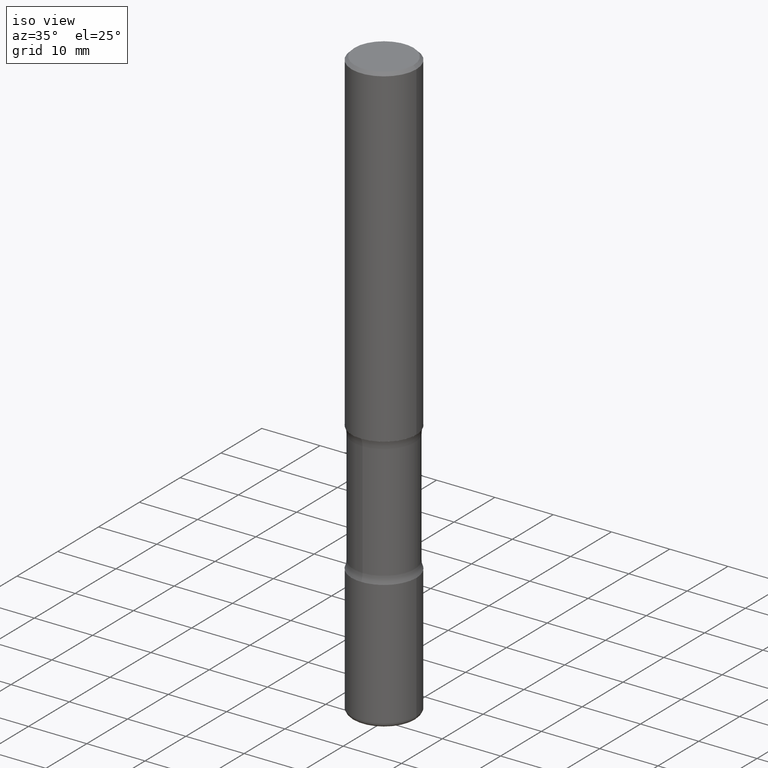
[diagram: clean part render]
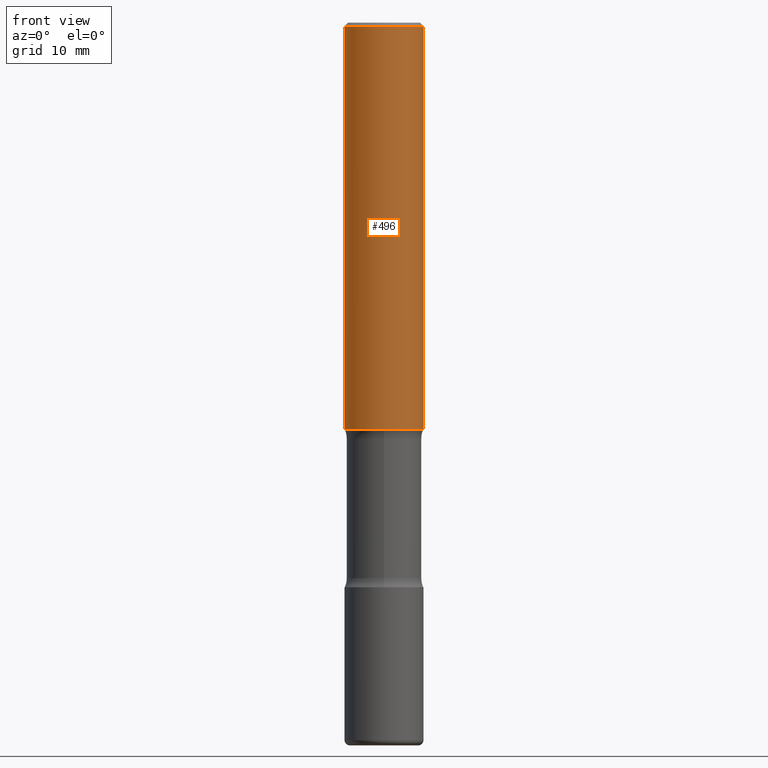
[diagram: tour spotlight — one face highlighted and labeled with its STEP entity id]
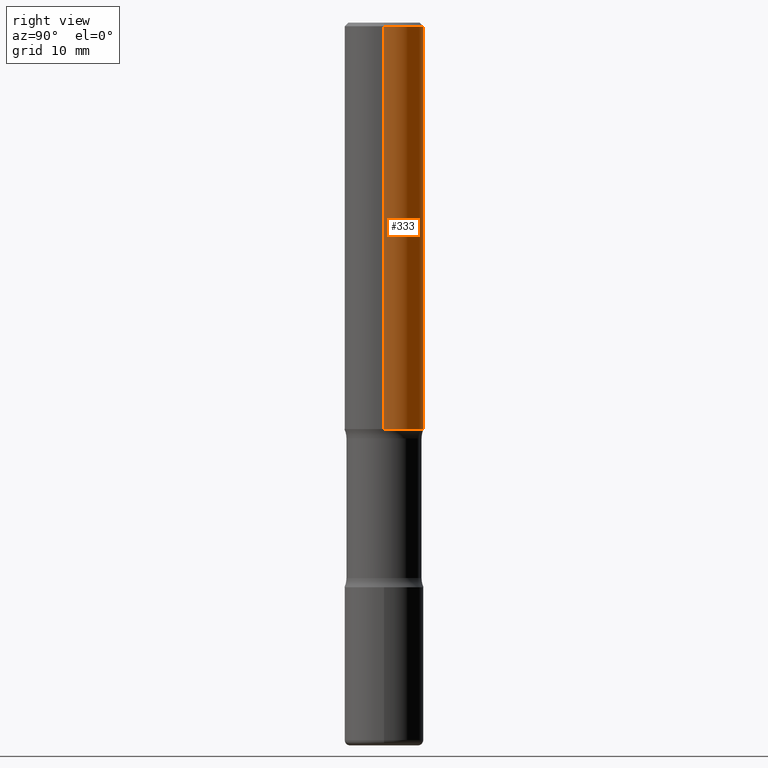
[diagram: tour spotlight — one face highlighted and labeled with its STEP entity id]
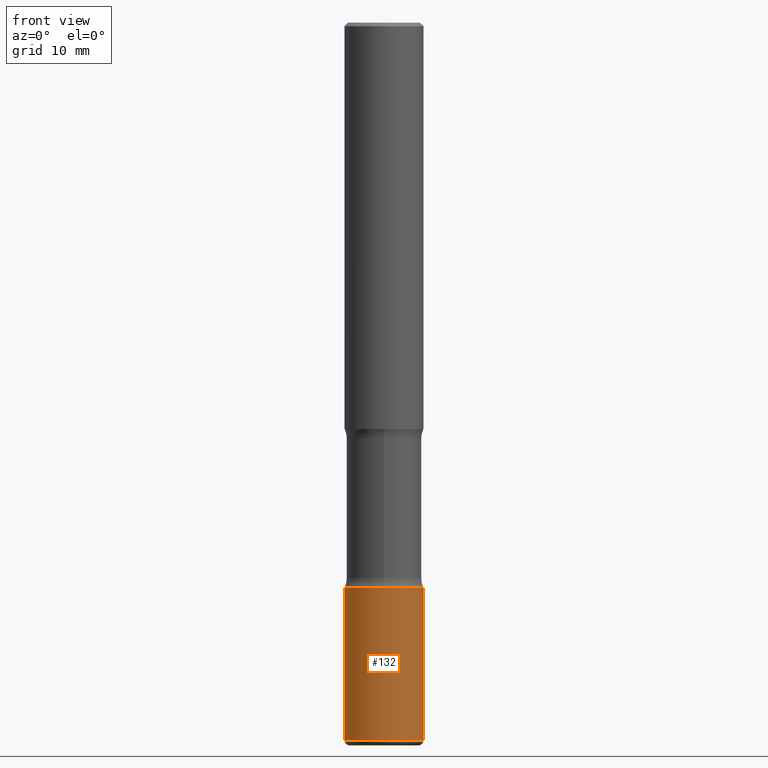
[diagram: tour spotlight — one face highlighted and labeled with its STEP entity id]
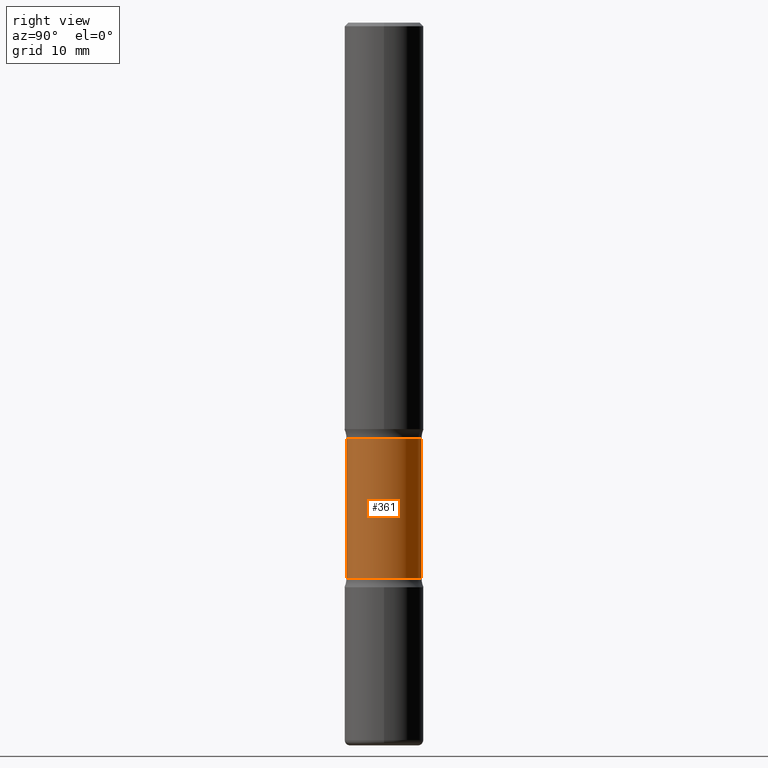
[diagram: tour spotlight — one face highlighted and labeled with its STEP entity id]
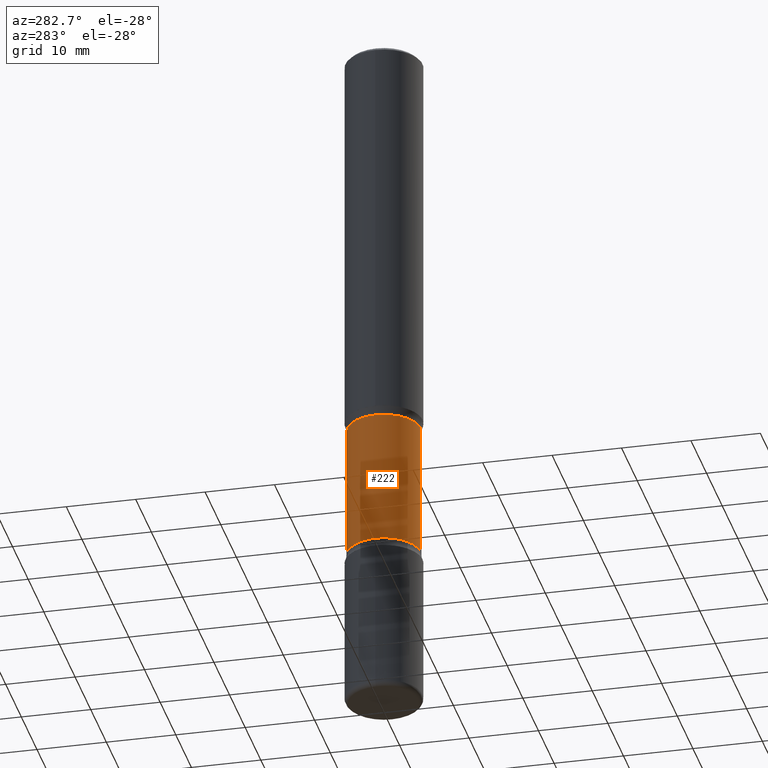
[diagram: tour spotlight — one face highlighted and labeled with its STEP entity id]
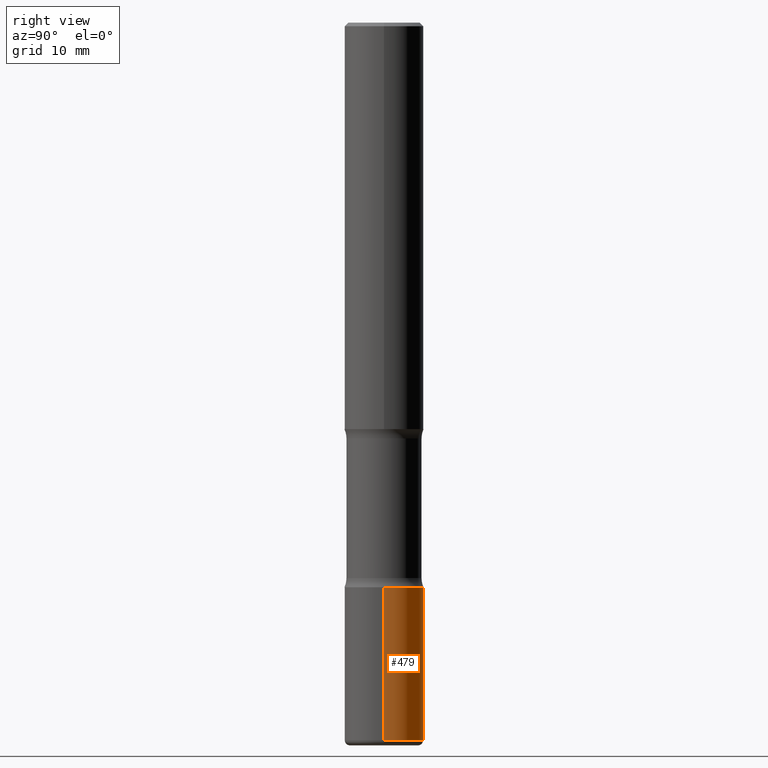
[diagram: tour spotlight — one face highlighted and labeled with its STEP entity id]
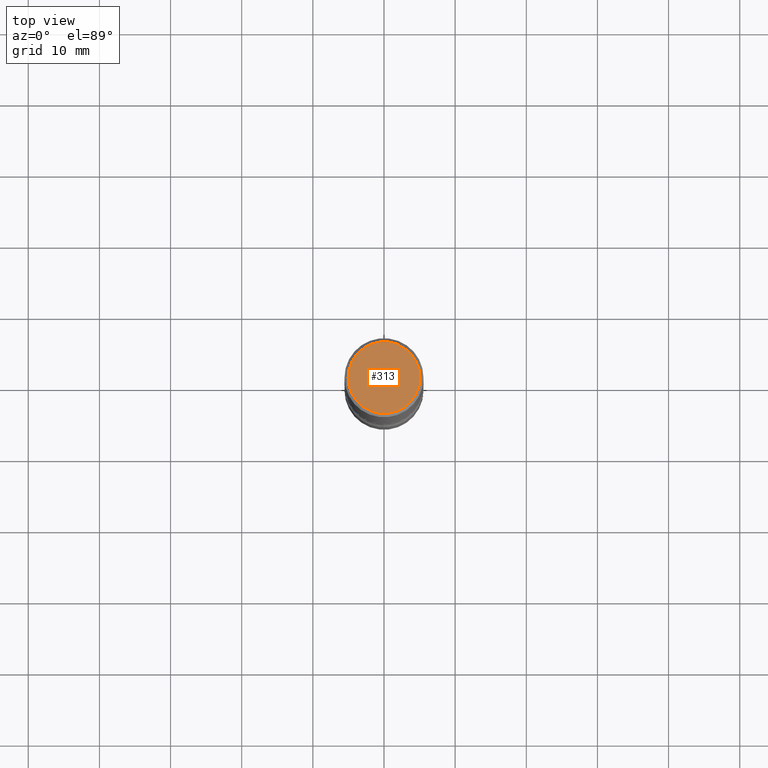
[diagram: tour spotlight — one face highlighted and labeled with its STEP entity id]
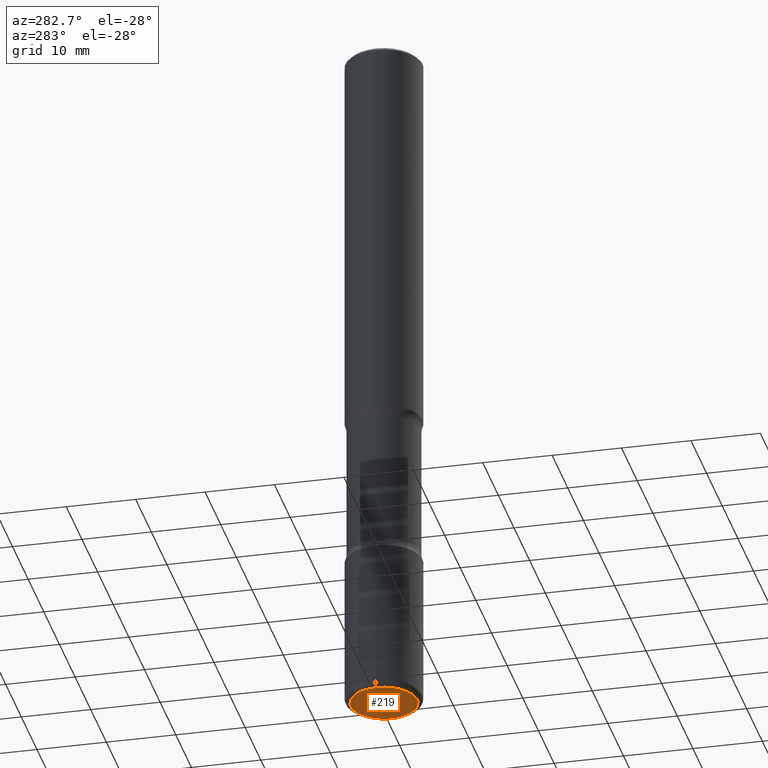
[diagram: tour spotlight — one face highlighted and labeled with its STEP entity id]
A machine part: a face-by-face anatomy tour. The part has 20 B-rep faces; the first image is the clean iso view, then the 8 largest visible faces are spotlighted one at a time (largest first), each with its STEP entity span.

Face 1 — front view, entity #496. In plain terms, the highlighted cylindrical surface (partial cylindrical patch) has radius 5.5563 mm, axis along (-0, 0, 1).
Definition (entity closure, byte-faithful):
#3 = CARTESIAN_POINT ( 'NONE',  ( 0.000000000000000000, 0.000000000000000000, 0.000000000000000000 ) ) ;
#12 = AXIS2_PLACEMENT_3D ( 'NONE', #475, #530, #78 ) ;
#27 = CIRCLE ( 'NONE', #12, 0.2187500000000001388 ) ;
#31 = ORIENTED_EDGE ( 'NONE', *, *, #355, .F. ) ;
#49 = VECTOR ( 'NONE', #334, 39.37007874015748143 ) ;
#69 = DIRECTION ( 'NONE',  ( -2.445468806185136877E-29, 3.491481338843145188E-15, 1.000000000000000000 ) ) ;
#74 = CARTESIAN_POINT ( 'NONE',  ( -0.2187500000000001388, -2.408519085111747378E-15, -2.249999999999999556 ) ) ;
#78 = DIRECTION ( 'NONE',  ( 1.000000000000000000, -6.982962677686263555E-15, 0.000000000000000000 ) ) ;
#90 = AXIS2_PLACEMENT_3D ( 'NONE', #3, #171, #344 ) ;
#107 = CIRCLE ( 'NONE', #117, 0.2187499999999998890 ) ;
#115 = CARTESIAN_POINT ( 'NONE',  ( 0.2187500000000000278, -1.527523085743871040E-15, 1.066663669705361025E-29 ) ) ;
#117 = AXIS2_PLACEMENT_3D ( 'NONE', #510, #506, #375 ) ;
#125 = EDGE_CURVE ( 'NONE', #411, #446, #27, .T. ) ;
#133 = CARTESIAN_POINT ( 'NONE',  ( -0.2187499999999998890, 1.457693458967006953E-15, -0.02000000000000006981 ) ) ;
#135 = VERTEX_POINT ( 'NONE', #133 ) ;
#158 = ORIENTED_EDGE ( 'NONE', *, *, #198, .F. ) ;
#169 = EDGE_CURVE ( 'NONE', #446, #406, #435, .T. ) ;
#171 = DIRECTION ( 'NONE',  ( -2.445468806185136597E-29, 3.491481338843145583E-15, 1.000000000000000000 ) ) ;
#198 = EDGE_CURVE ( 'NONE', #411, #135, #292, .T. ) ;
#206 = EDGE_LOOP ( 'NONE', ( #158, #370, #459, #31 ) ) ;
#220 = FACE_OUTER_BOUND ( 'NONE', #206, .T. ) ;
#243 = VECTOR ( 'NONE', #69, 39.37007874015748143 ) ;
#292 = LINE ( 'NONE', #460, #243 ) ;
#302 = CARTESIAN_POINT ( 'NONE',  ( 0.2187500000000001388, -9.383356098140946925E-15, -2.249999999999999556 ) ) ;
#334 = DIRECTION ( 'NONE',  ( -2.445468806185136877E-29, 3.491481338843145188E-15, 1.000000000000000000 ) ) ;
#344 = DIRECTION ( 'NONE',  ( 1.000000000000000000, -6.982962677686266711E-15, 4.876176775795935232E-29 ) ) ;
#355 = EDGE_CURVE ( 'NONE', #135, #406, #107, .T. ) ;
#370 = ORIENTED_EDGE ( 'NONE', *, *, #125, .T. ) ;
#375 = DIRECTION ( 'NONE',  ( 1.000000000000000000, -6.982962677686266711E-15, 0.000000000000000000 ) ) ;
#388 = CYLINDRICAL_SURFACE ( 'NONE', #90, 0.2187500000000000278 ) ;
#406 = VERTEX_POINT ( 'NONE', #410 ) ;
#410 = CARTESIAN_POINT ( 'NONE',  ( 0.2187499999999998890, -1.570563563789384841E-15, -0.02000000000000006981 ) ) ;
#411 = VERTEX_POINT ( 'NONE', #74 ) ;
#435 = LINE ( 'NONE', #115, #49 ) ;
#446 = VERTEX_POINT ( 'NONE', #302 ) ;
#459 = ORIENTED_EDGE ( 'NONE', *, *, #169, .T. ) ;
#460 = CARTESIAN_POINT ( 'NONE',  ( -0.2187500000000000278, 1.554312234475219354E-15, -1.076017050993260762E-29 ) ) ;
#475 = CARTESIAN_POINT ( 'NONE',  ( 5.502304813916556222E-29, -7.855833012397075293E-15, -2.249999999999999556 ) ) ;
#496 = ADVANCED_FACE ( 'NONE', ( #220 ), #388, .T. ) ;
#506 = DIRECTION ( 'NONE',  ( -2.445468806185136597E-29, 3.491481338843145583E-15, 1.000000000000000000 ) ) ;
#510 = CARTESIAN_POINT ( 'NONE',  ( 4.890937612370289799E-31, -6.982962677686315028E-17, -0.02000000000000006981 ) ) ;
#530 = DIRECTION ( 'NONE',  ( -2.445468806185136597E-29, 3.491481338843145583E-15, 1.000000000000000000 ) ) ;

Face 2 — right view, entity #333. In plain terms, the highlighted cylindrical surface (partial cylindrical patch) has radius 5.5563 mm, axis along (-0, 0, 1).
Definition (entity closure, byte-faithful):
#6 = DIRECTION ( 'NONE',  ( 1.000000000000000000, -6.982962677686266711E-15, 0.000000000000000000 ) ) ;
#23 = CARTESIAN_POINT ( 'NONE',  ( 5.502304813916556222E-29, -7.855833012397075293E-15, -2.249999999999999556 ) ) ;
#24 = ORIENTED_EDGE ( 'NONE', *, *, #198, .T. ) ;
#49 = VECTOR ( 'NONE', #334, 39.37007874015748143 ) ;
#56 = EDGE_LOOP ( 'NONE', ( #378, #24, #162, #376 ) ) ;
#69 = DIRECTION ( 'NONE',  ( -2.445468806185136877E-29, 3.491481338843145188E-15, 1.000000000000000000 ) ) ;
#74 = CARTESIAN_POINT ( 'NONE',  ( -0.2187500000000001388, -2.408519085111747378E-15, -2.249999999999999556 ) ) ;
#106 = DIRECTION ( 'NONE',  ( -2.445468806185136597E-29, 3.491481338843145583E-15, 1.000000000000000000 ) ) ;
#115 = CARTESIAN_POINT ( 'NONE',  ( 0.2187500000000000278, -1.527523085743871040E-15, 1.066663669705361025E-29 ) ) ;
#128 = CIRCLE ( 'NONE', #224, 0.2187500000000001388 ) ;
#133 = CARTESIAN_POINT ( 'NONE',  ( -0.2187499999999998890, 1.457693458967006953E-15, -0.02000000000000006981 ) ) ;
#135 = VERTEX_POINT ( 'NONE', #133 ) ;
#149 = FACE_OUTER_BOUND ( 'NONE', #56, .T. ) ;
#153 = CARTESIAN_POINT ( 'NONE',  ( 0.000000000000000000, 0.000000000000000000, 0.000000000000000000 ) ) ;
#162 = ORIENTED_EDGE ( 'NONE', *, *, #516, .F. ) ;
#169 = EDGE_CURVE ( 'NONE', #446, #406, #435, .T. ) ;
#174 = CARTESIAN_POINT ( 'NONE',  ( 4.890937612370289799E-31, -6.982962677686315028E-17, -0.02000000000000006981 ) ) ;
#198 = EDGE_CURVE ( 'NONE', #411, #135, #292, .T. ) ;
#202 = DIRECTION ( 'NONE',  ( -2.445468806185136597E-29, 3.491481338843145583E-15, 1.000000000000000000 ) ) ;
#224 = AXIS2_PLACEMENT_3D ( 'NONE', #23, #106, #285 ) ;
#243 = VECTOR ( 'NONE', #69, 39.37007874015748143 ) ;
#266 = AXIS2_PLACEMENT_3D ( 'NONE', #153, #202, #499 ) ;
#285 = DIRECTION ( 'NONE',  ( 1.000000000000000000, -6.982962677686263555E-15, 0.000000000000000000 ) ) ;
#292 = LINE ( 'NONE', #460, #243 ) ;
#302 = CARTESIAN_POINT ( 'NONE',  ( 0.2187500000000001388, -9.383356098140946925E-15, -2.249999999999999556 ) ) ;
#326 = AXIS2_PLACEMENT_3D ( 'NONE', #174, #391, #6 ) ;
#331 = CYLINDRICAL_SURFACE ( 'NONE', #266, 0.2187500000000000278 ) ;
#333 = ADVANCED_FACE ( 'NONE', ( #149 ), #331, .T. ) ;
#334 = DIRECTION ( 'NONE',  ( -2.445468806185136877E-29, 3.491481338843145188E-15, 1.000000000000000000 ) ) ;
#346 = EDGE_CURVE ( 'NONE', #446, #411, #128, .T. ) ;
#358 = CIRCLE ( 'NONE', #326, 0.2187499999999998890 ) ;
#376 = ORIENTED_EDGE ( 'NONE', *, *, #169, .F. ) ;
#378 = ORIENTED_EDGE ( 'NONE', *, *, #346, .T. ) ;
#391 = DIRECTION ( 'NONE',  ( -2.445468806185136597E-29, 3.491481338843145583E-15, 1.000000000000000000 ) ) ;
#406 = VERTEX_POINT ( 'NONE', #410 ) ;
#410 = CARTESIAN_POINT ( 'NONE',  ( 0.2187499999999998890, -1.570563563789384841E-15, -0.02000000000000006981 ) ) ;
#411 = VERTEX_POINT ( 'NONE', #74 ) ;
#435 = LINE ( 'NONE', #115, #49 ) ;
#446 = VERTEX_POINT ( 'NONE', #302 ) ;
#460 = CARTESIAN_POINT ( 'NONE',  ( -0.2187500000000000278, 1.554312234475219354E-15, -1.076017050993260762E-29 ) ) ;
#499 = DIRECTION ( 'NONE',  ( 1.000000000000000000, -6.982962677686266711E-15, 4.876176775795935232E-29 ) ) ;
#516 = EDGE_CURVE ( 'NONE', #406, #135, #358, .T. ) ;

Face 3 — front view, entity #132. In plain terms, the highlighted cylindrical surface (partial cylindrical patch) has radius 5.5563 mm, axis along (-0, 0, 1).
Definition (entity closure, byte-faithful):
#2 = CARTESIAN_POINT ( 'NONE',  ( 0.2187500000000001943, -1.243840226962869808E-14, -3.124999999999999112 ) ) ;
#13 = EDGE_CURVE ( 'NONE', #329, #360, #195, .T. ) ;
#30 = CARTESIAN_POINT ( 'NONE',  ( 0.2187500000000003608, -1.538870400095116217E-14, -3.970000000000000195 ) ) ;
#39 = CYLINDRICAL_SURFACE ( 'NONE', #152, 0.2187500000000002220 ) ;
#46 = CARTESIAN_POINT ( 'NONE',  ( -0.2187500000000001943, -1.083171781507083697E-14, -3.124999999999999112 ) ) ;
#50 = VECTOR ( 'NONE', #424, 39.37007874015748143 ) ;
#60 = VERTEX_POINT ( 'NONE', #2 ) ;
#71 = ORIENTED_EDGE ( 'NONE', *, *, #13, .T. ) ;
#82 = FACE_OUTER_BOUND ( 'NONE', #189, .T. ) ;
#84 = DIRECTION ( 'NONE',  ( 1.000000000000000000, -6.982962677686265133E-15, 0.000000000000000000 ) ) ;
#85 = LINE ( 'NONE', #558, #165 ) ;
#120 = ORIENTED_EDGE ( 'NONE', *, *, #277, .F. ) ;
#132 = ADVANCED_FACE ( 'NONE', ( #82 ), #39, .T. ) ;
#151 = CARTESIAN_POINT ( 'NONE',  ( 7.642090019328550744E-29, -1.091087918388482645E-14, -3.124999999999999112 ) ) ;
#152 = AXIS2_PLACEMENT_3D ( 'NONE', #259, #254, #437 ) ;
#164 = AXIS2_PLACEMENT_3D ( 'NONE', #513, #387, #84 ) ;
#165 = VECTOR ( 'NONE', #296, 39.37007874015748143 ) ;
#187 = CIRCLE ( 'NONE', #314, 0.2187500000000001943 ) ;
#189 = EDGE_LOOP ( 'NONE', ( #367, #71, #199, #120 ) ) ;
#195 = CIRCLE ( 'NONE', #164, 0.2187500000000002220 ) ;
#199 = ORIENTED_EDGE ( 'NONE', *, *, #400, .T. ) ;
#235 = LINE ( 'NONE', #244, #50 ) ;
#244 = CARTESIAN_POINT ( 'NONE',  ( 0.2187500000000002220, -1.527523085743872421E-15, 1.066663669705362006E-29 ) ) ;
#254 = DIRECTION ( 'NONE',  ( -2.445468806185136597E-29, 3.491481338843145583E-15, 1.000000000000000000 ) ) ;
#259 = CARTESIAN_POINT ( 'NONE',  ( 0.000000000000000000, 0.000000000000000000, 0.000000000000000000 ) ) ;
#277 = EDGE_CURVE ( 'NONE', #324, #60, #187, .T. ) ;
#296 = DIRECTION ( 'NONE',  ( -2.445468806185136877E-29, 3.491481338843145188E-15, 1.000000000000000000 ) ) ;
#314 = AXIS2_PLACEMENT_3D ( 'NONE', #151, #509, #377 ) ;
#324 = VERTEX_POINT ( 'NONE', #46 ) ;
#329 = VERTEX_POINT ( 'NONE', #396 ) ;
#360 = VERTEX_POINT ( 'NONE', #30 ) ;
#367 = ORIENTED_EDGE ( 'NONE', *, *, #508, .F. ) ;
#377 = DIRECTION ( 'NONE',  ( 1.000000000000000000, -6.982962677686265922E-15, 0.000000000000000000 ) ) ;
#387 = DIRECTION ( 'NONE',  ( -2.445468806185136597E-29, 3.491481338843145583E-15, 1.000000000000000000 ) ) ;
#396 = CARTESIAN_POINT ( 'NONE',  ( -0.2187500000000003608, -1.230686868073206507E-14, -3.970000000000000195 ) ) ;
#400 = EDGE_CURVE ( 'NONE', #360, #60, #235, .T. ) ;
#424 = DIRECTION ( 'NONE',  ( -2.445468806185136877E-29, 3.491481338843145188E-15, 1.000000000000000000 ) ) ;
#437 = DIRECTION ( 'NONE',  ( 1.000000000000000000, -6.982962677686266711E-15, 4.876176775795935793E-29 ) ) ;
#508 = EDGE_CURVE ( 'NONE', #329, #324, #85, .T. ) ;
#509 = DIRECTION ( 'NONE',  ( -2.445468806185136597E-29, 3.491481338843145583E-15, 1.000000000000000000 ) ) ;
#513 = CARTESIAN_POINT ( 'NONE',  ( 9.708511160554992872E-29, -1.386118091520728738E-14, -3.970000000000000195 ) ) ;
#558 = CARTESIAN_POINT ( 'NONE',  ( -0.2187500000000002220, 1.554312234475220734E-15, -1.076017050993261743E-29 ) ) ;

Face 4 — right view, entity #361. In plain terms, the highlighted cylindrical surface (partial cylindrical patch) has radius 5.2784 mm, axis along (0, -0, -1).
Definition (entity closure, byte-faithful):
#25 = CARTESIAN_POINT ( 'NONE',  ( 1.451146931456752440E-15, 0.2078124999999892975, -3.073865411962644068 ) ) ;
#33 = ORIENTED_EDGE ( 'NONE', *, *, #55, .F. ) ;
#42 = CARTESIAN_POINT ( 'NONE',  ( 1.451146931456775908E-15, 0.2078124999999861888, -4.000000000000000888 ) ) ;
#55 = EDGE_CURVE ( 'NONE', #332, #204, #438, .T. ) ;
#57 = EDGE_CURVE ( 'NONE', #204, #273, #556, .T. ) ;
#73 = CARTESIAN_POINT ( 'NONE',  ( -1.425697240161797519E-15, -0.2078125000000138334, -3.999999999999999556 ) ) ;
#81 = EDGE_CURVE ( 'NONE', #332, #544, #223, .T. ) ;
#83 = CARTESIAN_POINT ( 'NONE',  ( -1.463215588587155192E-15, -0.2078125000000081712, -2.301134588037354156 ) ) ;
#92 = ORIENTED_EDGE ( 'NONE', *, *, #280, .T. ) ;
#100 = FACE_OUTER_BOUND ( 'NONE', #281, .T. ) ;
#105 = AXIS2_PLACEMENT_3D ( 'NONE', #311, #126, #477 ) ;
#110 = CARTESIAN_POINT ( 'NONE',  ( 9.866784870866931853E-29, -1.384432990936266734E-14, -4.000000000000000000 ) ) ;
#126 = DIRECTION ( 'NONE',  ( 2.542508401758147997E-29, -3.352515114831814446E-15, -1.000000000000000000 ) ) ;
#154 = VECTOR ( 'NONE', #552, 39.37007874015748143 ) ;
#170 = DIRECTION ( 'NONE',  ( 2.542508401758147997E-29, -3.352515114831814446E-15, -1.000000000000000000 ) ) ;
#191 = ORIENTED_EDGE ( 'NONE', *, *, #57, .F. ) ;
#204 = VERTEX_POINT ( 'NONE', #25 ) ;
#205 = CARTESIAN_POINT ( 'NONE',  ( -1.463215588587134090E-15, -0.2078125000000107248, -3.073865411962643179 ) ) ;
#223 = CIRCLE ( 'NONE', #105, 0.2078125000000000389 ) ;
#265 = AXIS2_PLACEMENT_3D ( 'NONE', #348, #170, #307 ) ;
#273 = VERTEX_POINT ( 'NONE', #205 ) ;
#280 = EDGE_CURVE ( 'NONE', #544, #273, #379, .T. ) ;
#281 = EDGE_LOOP ( 'NONE', ( #465, #92, #191, #33 ) ) ;
#303 = DIRECTION ( 'NONE',  ( 2.542508401758147997E-29, -3.352515114831814446E-15, -1.000000000000000000 ) ) ;
#307 = DIRECTION ( 'NONE',  ( 6.982962677686265133E-15, 1.000000000000000000, -2.629146941270869802E-15 ) ) ;
#311 = CARTESIAN_POINT ( 'NONE',  ( 5.547405287495589114E-29, -8.148857937692923452E-15, -2.301134588037355044 ) ) ;
#332 = VERTEX_POINT ( 'NONE', #366 ) ;
#339 = AXIS2_PLACEMENT_3D ( 'NONE', #110, #453, #369 ) ;
#348 = CARTESIAN_POINT ( 'NONE',  ( 7.512079899623131265E-29, -1.073944970459889485E-14, -3.073865411962643623 ) ) ;
#361 = ADVANCED_FACE ( 'NONE', ( #100 ), #543, .T. ) ;
#366 = CARTESIAN_POINT ( 'NONE',  ( 1.451146931456732915E-15, 0.2078124999999918787, -2.301134588037355932 ) ) ;
#369 = DIRECTION ( 'NONE',  ( 6.982962677686265133E-15, 1.000000000000000000, -2.629146941270869802E-15 ) ) ;
#379 = LINE ( 'NONE', #73, #154 ) ;
#438 = LINE ( 'NONE', #42, #484 ) ;
#453 = DIRECTION ( 'NONE',  ( 2.542508401758147997E-29, -3.352515114831814446E-15, -1.000000000000000000 ) ) ;
#465 = ORIENTED_EDGE ( 'NONE', *, *, #81, .T. ) ;
#477 = DIRECTION ( 'NONE',  ( 6.982962677686265133E-15, 1.000000000000000000, -3.943720411906303717E-15 ) ) ;
#484 = VECTOR ( 'NONE', #303, 39.37007874015748143 ) ;
#543 = CYLINDRICAL_SURFACE ( 'NONE', #339, 0.2078125000000000111 ) ;
#544 = VERTEX_POINT ( 'NONE', #83 ) ;
#552 = DIRECTION ( 'NONE',  ( 2.542508401758147997E-29, -3.352515114831814446E-15, -1.000000000000000000 ) ) ;
#556 = CIRCLE ( 'NONE', #265, 0.2078125000000000111 ) ;

Face 5 — auxiliary view, entity #222. In plain terms, the highlighted cylindrical surface (partial cylindrical patch) has radius 5.2784 mm, axis along (0, -0, -1).
Definition (entity closure, byte-faithful):
#25 = CARTESIAN_POINT ( 'NONE',  ( 1.451146931456752440E-15, 0.2078124999999892975, -3.073865411962644068 ) ) ;
#32 = FACE_OUTER_BOUND ( 'NONE', #163, .T. ) ;
#38 = CYLINDRICAL_SURFACE ( 'NONE', #276, 0.2078125000000000111 ) ;
#42 = CARTESIAN_POINT ( 'NONE',  ( 1.451146931456775908E-15, 0.2078124999999861888, -4.000000000000000888 ) ) ;
#55 = EDGE_CURVE ( 'NONE', #332, #204, #438, .T. ) ;
#66 = ORIENTED_EDGE ( 'NONE', *, *, #55, .T. ) ;
#73 = CARTESIAN_POINT ( 'NONE',  ( -1.425697240161797519E-15, -0.2078125000000138334, -3.999999999999999556 ) ) ;
#76 = CARTESIAN_POINT ( 'NONE',  ( 5.547405287495589114E-29, -8.148857937692923452E-15, -2.301134588037355044 ) ) ;
#83 = CARTESIAN_POINT ( 'NONE',  ( -1.463215588587155192E-15, -0.2078125000000081712, -2.301134588037354156 ) ) ;
#154 = VECTOR ( 'NONE', #552, 39.37007874015748143 ) ;
#163 = EDGE_LOOP ( 'NONE', ( #362, #408, #66, #535 ) ) ;
#167 = DIRECTION ( 'NONE',  ( 6.982962677686265133E-15, 1.000000000000000000, -3.943720411906303717E-15 ) ) ;
#177 = AXIS2_PLACEMENT_3D ( 'NONE', #212, #347, #525 ) ;
#203 = CIRCLE ( 'NONE', #493, 0.2078125000000000389 ) ;
#204 = VERTEX_POINT ( 'NONE', #25 ) ;
#205 = CARTESIAN_POINT ( 'NONE',  ( -1.463215588587134090E-15, -0.2078125000000107248, -3.073865411962643179 ) ) ;
#212 = CARTESIAN_POINT ( 'NONE',  ( 7.512079899623131265E-29, -1.073944970459889485E-14, -3.073865411962643623 ) ) ;
#222 = ADVANCED_FACE ( 'NONE', ( #32 ), #38, .T. ) ;
#273 = VERTEX_POINT ( 'NONE', #205 ) ;
#276 = AXIS2_PLACEMENT_3D ( 'NONE', #368, #519, #463 ) ;
#280 = EDGE_CURVE ( 'NONE', #544, #273, #379, .T. ) ;
#303 = DIRECTION ( 'NONE',  ( 2.542508401758147997E-29, -3.352515114831814446E-15, -1.000000000000000000 ) ) ;
#320 = CIRCLE ( 'NONE', #177, 0.2078125000000000111 ) ;
#332 = VERTEX_POINT ( 'NONE', #366 ) ;
#347 = DIRECTION ( 'NONE',  ( 2.542508401758147997E-29, -3.352515114831814446E-15, -1.000000000000000000 ) ) ;
#362 = ORIENTED_EDGE ( 'NONE', *, *, #280, .F. ) ;
#366 = CARTESIAN_POINT ( 'NONE',  ( 1.451146931456732915E-15, 0.2078124999999918787, -2.301134588037355932 ) ) ;
#368 = CARTESIAN_POINT ( 'NONE',  ( 9.866784870866931853E-29, -1.384432990936266734E-14, -4.000000000000000000 ) ) ;
#379 = LINE ( 'NONE', #73, #154 ) ;
#408 = ORIENTED_EDGE ( 'NONE', *, *, #448, .T. ) ;
#423 = EDGE_CURVE ( 'NONE', #273, #204, #320, .T. ) ;
#438 = LINE ( 'NONE', #42, #484 ) ;
#448 = EDGE_CURVE ( 'NONE', #544, #332, #203, .T. ) ;
#463 = DIRECTION ( 'NONE',  ( 6.982962677686265133E-15, 1.000000000000000000, -2.629146941270869802E-15 ) ) ;
#484 = VECTOR ( 'NONE', #303, 39.37007874015748143 ) ;
#493 = AXIS2_PLACEMENT_3D ( 'NONE', #76, #521, #167 ) ;
#519 = DIRECTION ( 'NONE',  ( 2.542508401758147997E-29, -3.352515114831814446E-15, -1.000000000000000000 ) ) ;
#521 = DIRECTION ( 'NONE',  ( 2.542508401758147997E-29, -3.352515114831814446E-15, -1.000000000000000000 ) ) ;
#525 = DIRECTION ( 'NONE',  ( 6.982962677686265133E-15, 1.000000000000000000, -2.629146941270869802E-15 ) ) ;
#535 = ORIENTED_EDGE ( 'NONE', *, *, #423, .F. ) ;
#544 = VERTEX_POINT ( 'NONE', #83 ) ;
#552 = DIRECTION ( 'NONE',  ( 2.542508401758147997E-29, -3.352515114831814446E-15, -1.000000000000000000 ) ) ;

Face 6 — right view, entity #479. In plain terms, the highlighted cylindrical surface (partial cylindrical patch) has radius 5.5563 mm, axis along (-0, 0, 1).
Definition (entity closure, byte-faithful):
#2 = CARTESIAN_POINT ( 'NONE',  ( 0.2187500000000001943, -1.243840226962869808E-14, -3.124999999999999112 ) ) ;
#9 = CYLINDRICAL_SURFACE ( 'NONE', #18, 0.2187500000000002220 ) ;
#18 = AXIS2_PLACEMENT_3D ( 'NONE', #518, #385, #352 ) ;
#28 = CIRCLE ( 'NONE', #45, 0.2187500000000002220 ) ;
#30 = CARTESIAN_POINT ( 'NONE',  ( 0.2187500000000003608, -1.538870400095116217E-14, -3.970000000000000195 ) ) ;
#45 = AXIS2_PLACEMENT_3D ( 'NONE', #62, #550, #455 ) ;
#46 = CARTESIAN_POINT ( 'NONE',  ( -0.2187500000000001943, -1.083171781507083697E-14, -3.124999999999999112 ) ) ;
#50 = VECTOR ( 'NONE', #424, 39.37007874015748143 ) ;
#60 = VERTEX_POINT ( 'NONE', #2 ) ;
#62 = CARTESIAN_POINT ( 'NONE',  ( 9.708511160554992872E-29, -1.386118091520728738E-14, -3.970000000000000195 ) ) ;
#85 = LINE ( 'NONE', #558, #165 ) ;
#96 = CIRCLE ( 'NONE', #420, 0.2187500000000001943 ) ;
#145 = EDGE_CURVE ( 'NONE', #60, #324, #96, .T. ) ;
#165 = VECTOR ( 'NONE', #296, 39.37007874015748143 ) ;
#184 = ORIENTED_EDGE ( 'NONE', *, *, #508, .T. ) ;
#213 = CARTESIAN_POINT ( 'NONE',  ( 7.642090019328550744E-29, -1.091087918388482645E-14, -3.124999999999999112 ) ) ;
#235 = LINE ( 'NONE', #244, #50 ) ;
#244 = CARTESIAN_POINT ( 'NONE',  ( 0.2187500000000002220, -1.527523085743872421E-15, 1.066663669705362006E-29 ) ) ;
#251 = ORIENTED_EDGE ( 'NONE', *, *, #145, .F. ) ;
#252 = FACE_OUTER_BOUND ( 'NONE', #340, .T. ) ;
#296 = DIRECTION ( 'NONE',  ( -2.445468806185136877E-29, 3.491481338843145188E-15, 1.000000000000000000 ) ) ;
#324 = VERTEX_POINT ( 'NONE', #46 ) ;
#329 = VERTEX_POINT ( 'NONE', #396 ) ;
#340 = EDGE_LOOP ( 'NONE', ( #359, #184, #251, #551 ) ) ;
#352 = DIRECTION ( 'NONE',  ( 1.000000000000000000, -6.982962677686266711E-15, 4.876176775795935793E-29 ) ) ;
#359 = ORIENTED_EDGE ( 'NONE', *, *, #365, .T. ) ;
#360 = VERTEX_POINT ( 'NONE', #30 ) ;
#365 = EDGE_CURVE ( 'NONE', #360, #329, #28, .T. ) ;
#384 = DIRECTION ( 'NONE',  ( -2.445468806185136597E-29, 3.491481338843145583E-15, 1.000000000000000000 ) ) ;
#385 = DIRECTION ( 'NONE',  ( -2.445468806185136597E-29, 3.491481338843145583E-15, 1.000000000000000000 ) ) ;
#396 = CARTESIAN_POINT ( 'NONE',  ( -0.2187500000000003608, -1.230686868073206507E-14, -3.970000000000000195 ) ) ;
#400 = EDGE_CURVE ( 'NONE', #360, #60, #235, .T. ) ;
#420 = AXIS2_PLACEMENT_3D ( 'NONE', #213, #384, #560 ) ;
#424 = DIRECTION ( 'NONE',  ( -2.445468806185136877E-29, 3.491481338843145188E-15, 1.000000000000000000 ) ) ;
#455 = DIRECTION ( 'NONE',  ( 1.000000000000000000, -6.982962677686265133E-15, 0.000000000000000000 ) ) ;
#479 = ADVANCED_FACE ( 'NONE', ( #252 ), #9, .T. ) ;
#508 = EDGE_CURVE ( 'NONE', #329, #324, #85, .T. ) ;
#518 = CARTESIAN_POINT ( 'NONE',  ( 0.000000000000000000, 0.000000000000000000, 0.000000000000000000 ) ) ;
#550 = DIRECTION ( 'NONE',  ( -2.445468806185136597E-29, 3.491481338843145583E-15, 1.000000000000000000 ) ) ;
#551 = ORIENTED_EDGE ( 'NONE', *, *, #400, .F. ) ;
#558 = CARTESIAN_POINT ( 'NONE',  ( -0.2187500000000002220, 1.554312234475220734E-15, -1.076017050993261743E-29 ) ) ;
#560 = DIRECTION ( 'NONE',  ( 1.000000000000000000, -6.982962677686265922E-15, 0.000000000000000000 ) ) ;

Face 7 — top view, entity #313. In plain terms, the highlighted planar face has unit normal (0, -0, -1).
Definition (entity closure, byte-faithful):
#17 = AXIS2_PLACEMENT_3D ( 'NONE', #175, #301, #221 ) ;
#68 = AXIS2_PLACEMENT_3D ( 'NONE', #522, #156, #268 ) ;
#72 = CARTESIAN_POINT ( 'NONE',  ( 0.1987499999999998157, -1.467043770423237861E-15, 9.982525199991778089E-30 ) ) ;
#86 = CARTESIAN_POINT ( 'NONE',  ( 0.000000000000000000, 0.000000000000000000, 0.000000000000000000 ) ) ;
#87 = EDGE_CURVE ( 'NONE', #116, #553, #325, .T. ) ;
#89 = AXIS2_PLACEMENT_3D ( 'NONE', #86, #482, #441 ) ;
#116 = VERTEX_POINT ( 'NONE', #527 ) ;
#134 = EDGE_CURVE ( 'NONE', #553, #116, #547, .T. ) ;
#148 = ORIENTED_EDGE ( 'NONE', *, *, #134, .T. ) ;
#156 = DIRECTION ( 'NONE',  ( 2.438088387897960049E-29, -3.491481338843145188E-15, -1.000000000000000000 ) ) ;
#175 = CARTESIAN_POINT ( 'NONE',  ( 0.000000000000000000, 0.000000000000000000, 0.000000000000000000 ) ) ;
#221 = DIRECTION ( 'NONE',  ( 1.000000000000000000, -6.982962677686266711E-15, 4.876176775795936353E-29 ) ) ;
#268 = DIRECTION ( 'NONE',  ( -1.000000000000000000, 6.982962677686265922E-15, -4.876176775795935793E-29 ) ) ;
#278 = ORIENTED_EDGE ( 'NONE', *, *, #87, .T. ) ;
#287 = PLANE ( 'NONE',  #68 ) ;
#301 = DIRECTION ( 'NONE',  ( -2.445468806185136597E-29, 3.491481338843145583E-15, 1.000000000000000000 ) ) ;
#313 = ADVANCED_FACE ( 'NONE', ( #474 ), #287, .F. ) ;
#321 = EDGE_LOOP ( 'NONE', ( #278, #148 ) ) ;
#325 = CIRCLE ( 'NONE', #17, 0.1987499999999998157 ) ;
#441 = DIRECTION ( 'NONE',  ( 1.000000000000000000, -6.982962677686266711E-15, 4.876176775795936353E-29 ) ) ;
#474 = FACE_OUTER_BOUND ( 'NONE', #321, .T. ) ;
#482 = DIRECTION ( 'NONE',  ( -2.445468806185136597E-29, 3.491481338843145583E-15, 1.000000000000000000 ) ) ;
#522 = CARTESIAN_POINT ( 'NONE',  ( 1.387863832190144049E-15, 0.1987499999999998157, -6.939319160950745885E-16 ) ) ;
#527 = CARTESIAN_POINT ( 'NONE',  ( -0.1987499999999998157, 1.422778645578575501E-15, -9.827974342635076689E-30 ) ) ;
#547 = CIRCLE ( 'NONE', #89, 0.1987499999999998157 ) ;
#553 = VERTEX_POINT ( 'NONE', #72 ) ;

Face 8 — auxiliary view, entity #219. In plain terms, the highlighted planar face has unit normal (0, -0, -1).
Definition (entity closure, byte-faithful):
#8 = DIRECTION ( 'NONE',  ( -2.445468806185136597E-29, 3.491481338843145583E-15, 1.000000000000000000 ) ) ;
#14 = VERTEX_POINT ( 'NONE', #480 ) ;
#29 = CARTESIAN_POINT ( 'NONE',  ( 1.696516779868644984E-29, -2.554461883845289462E-14, -4.000000000000000000 ) ) ;
#41 = DIRECTION ( 'NONE',  ( 1.000000000000000000, -6.982962677686261977E-15, 0.000000000000000000 ) ) ;
#44 = AXIS2_PLACEMENT_3D ( 'NONE', #264, #262, #41 ) ;
#53 = EDGE_CURVE ( 'NONE', #241, #14, #274, .T. ) ;
#77 = FACE_OUTER_BOUND ( 'NONE', #335, .T. ) ;
#111 = ORIENTED_EDGE ( 'NONE', *, *, #53, .F. ) ;
#112 = EDGE_CURVE ( 'NONE', #14, #241, #338, .T. ) ;
#113 = CARTESIAN_POINT ( 'NONE',  ( -0.1887500000000002787, -1.246582231117873082E-14, -4.000000000000000888 ) ) ;
#179 = DIRECTION ( 'NONE',  ( 1.000000000000000000, -6.982962677686261977E-15, 0.000000000000000000 ) ) ;
#185 = AXIS2_PLACEMENT_3D ( 'NONE', #392, #8, #179 ) ;
#201 = DIRECTION ( 'NONE',  ( -1.000000000000000000, 6.982962677686265922E-15, -4.876176775795935793E-29 ) ) ;
#219 = ADVANCED_FACE ( 'NONE', ( #77 ), #426, .T. ) ;
#241 = VERTEX_POINT ( 'NONE', #113 ) ;
#242 = DIRECTION ( 'NONE',  ( 2.438088387897960049E-29, -3.491481338843145188E-15, -1.000000000000000000 ) ) ;
#262 = DIRECTION ( 'NONE',  ( -2.445468806185136597E-29, 3.491481338843145583E-15, 1.000000000000000000 ) ) ;
#264 = CARTESIAN_POINT ( 'NONE',  ( 9.781875224740547508E-29, -1.396592535537258391E-14, -4.000000000000000888 ) ) ;
#274 = CIRCLE ( 'NONE', #44, 0.1887500000000002787 ) ;
#335 = EDGE_LOOP ( 'NONE', ( #471, #111 ) ) ;
#338 = CIRCLE ( 'NONE', #185, 0.1887500000000002787 ) ;
#392 = CARTESIAN_POINT ( 'NONE',  ( 9.781875224740547508E-29, -1.396592535537258391E-14, -4.000000000000000888 ) ) ;
#426 = PLANE ( 'NONE',  #539 ) ;
#471 = ORIENTED_EDGE ( 'NONE', *, *, #112, .F. ) ;
#480 = CARTESIAN_POINT ( 'NONE',  ( 0.1887500000000002787, -1.528395956078586880E-14, -4.000000000000000888 ) ) ;
#539 = AXIS2_PLACEMENT_3D ( 'NONE', #29, #242, #201 ) ;